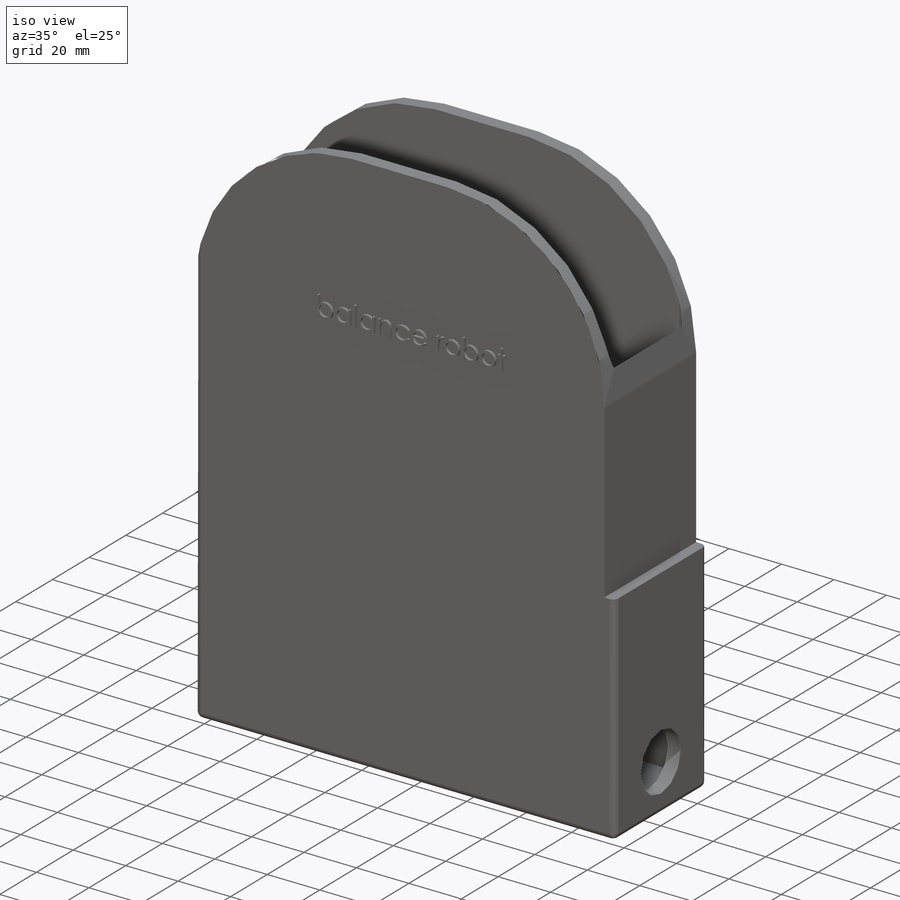
[diagram: iso view]
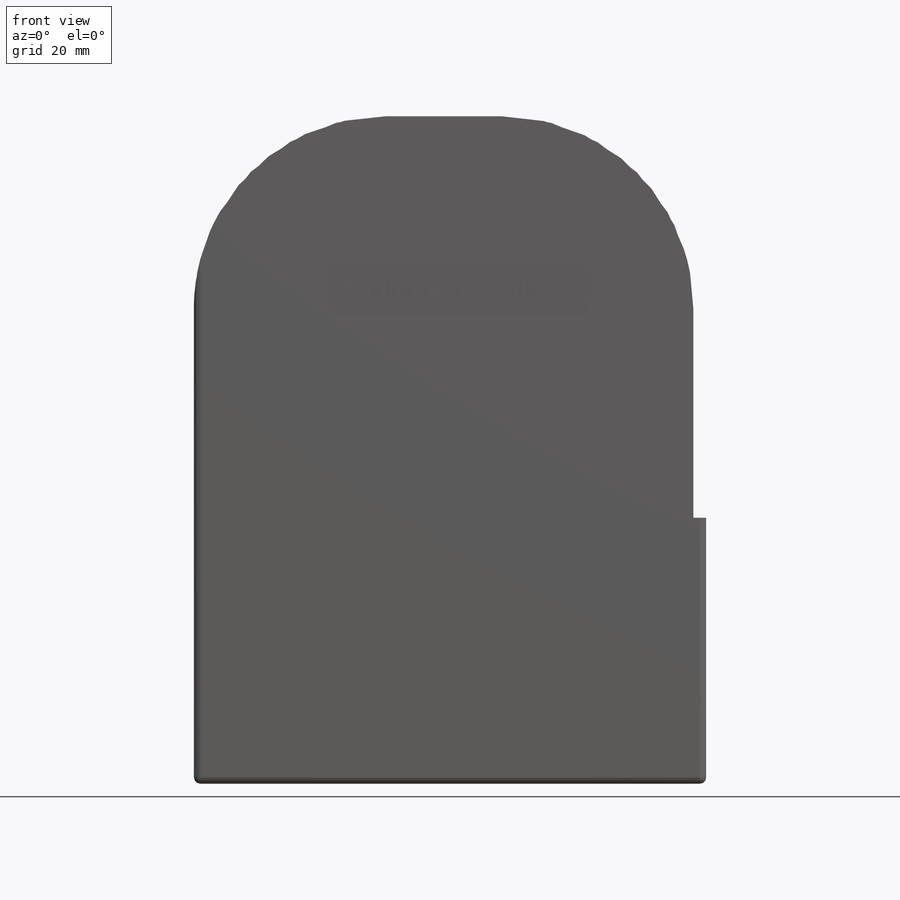
[diagram: front view]
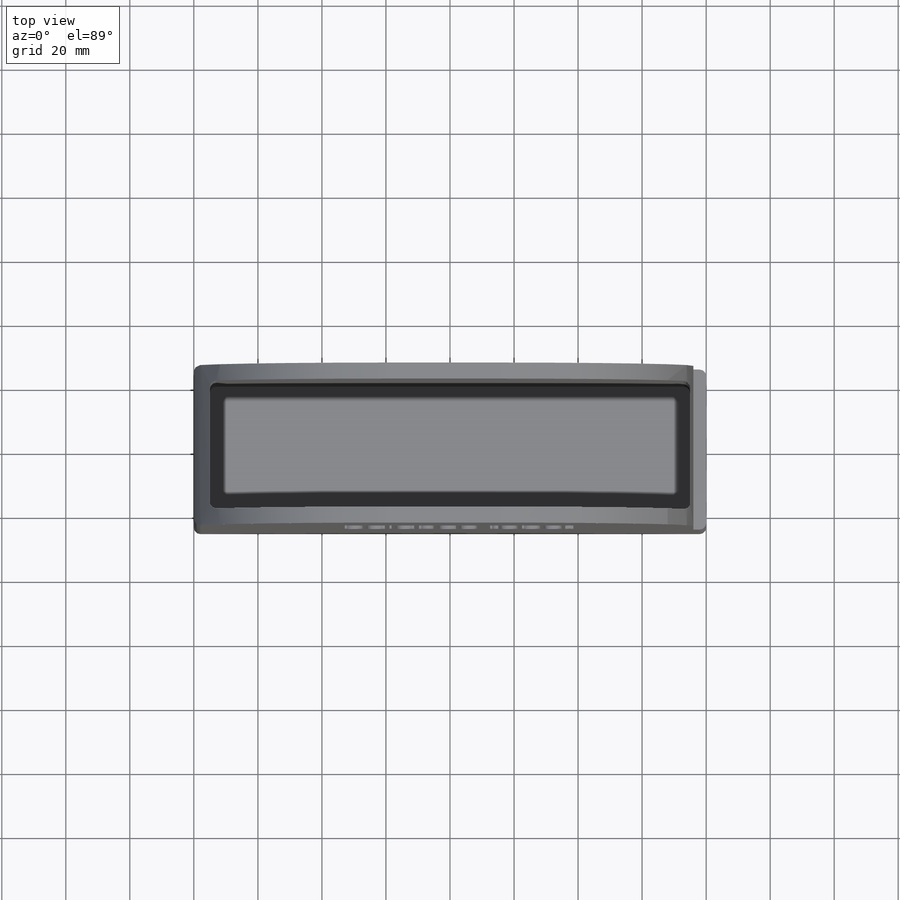
[diagram: top view]
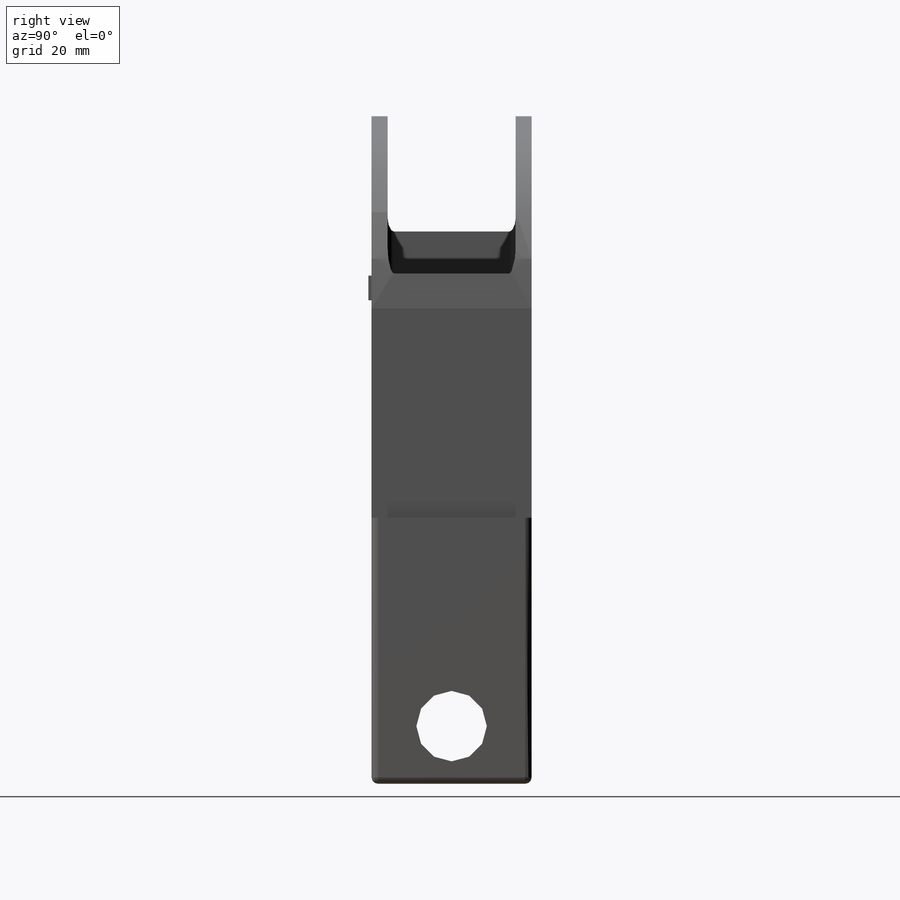
[diagram: right view]
SOLIDWORKS PART (.sldprt)
format: sldprt  version: not decoded by parser v0  size: 494,080 bytes
history: native  units: mm
features: sketch x6, plane x4, extrude x4, cut_extrude x2, material x1, fillet x1 (+10 scaffold rows collapsed)
feature tree (28):
  scaffold x10  (default folders/planes/origin — collapsed)
  material  "Cam"
  plane  "Ön Düzlem"
  plane  "Üst Düzlem"
  plane  "Sağ Düzlem"
  sketch  "Çizim1"  dims[D1=150.0mm D2=40.0mm D3=160.0mm D4=50.0mm]
  extrude  "Yükseklik-Ekstrüzyon1"  Depth=260mm
  sketch  "Çizim3"
  extrude  "Yükseklik-Ekstrüzyon2"  Depth=5mm
  sketch  "Çizim4"  dims[D1=18.0mm]
  cut_extrude  "Kes-Ekstrüzyon1"  Depth=248mm
  fillet  "Radyus1"  Radius=2mm
  plane  "Düzlem1"  Offset=50mm
  sketch  "Çizim5"  dims[D1=0.0mm]
  extrude  "Yükseklik-Ekstrüzyon3"  Depth=10mm
  sketch  "Çizim6"  dims[D1=60.0mm D2=60.0mm]
  cut_extrude  "Kes-Ekstrüzyon2"  Depth=76mm
  sketch  "Çizim8"
  extrude  "Yükseklik-Ekstrüzyon4"  Depth=1mm
decode coverage: 11 of 13 modeling features carry decoded parameters
note: suppression state not decoded; provenance and decode notes live in map.json
